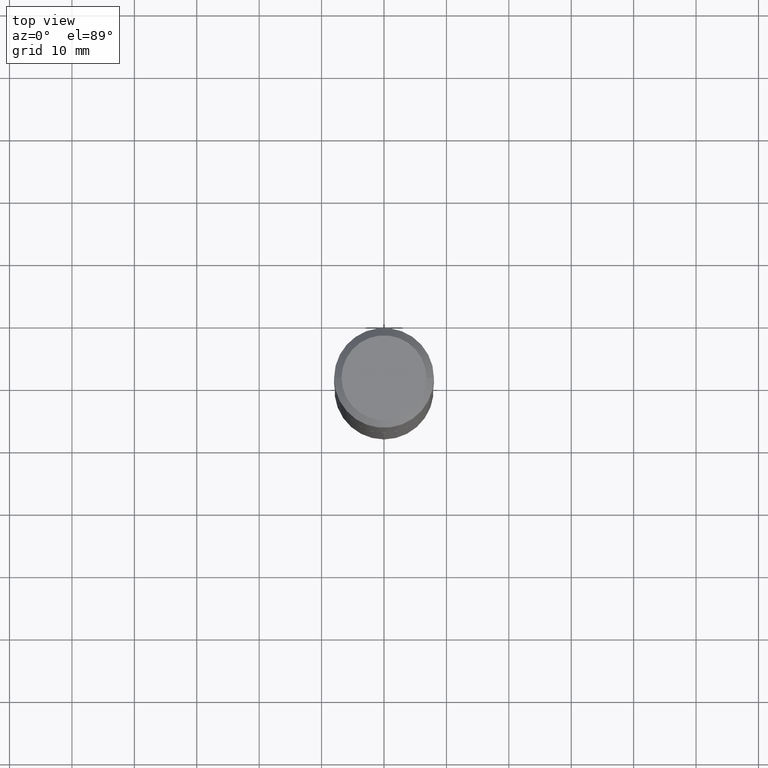
[diagram: clean part render]
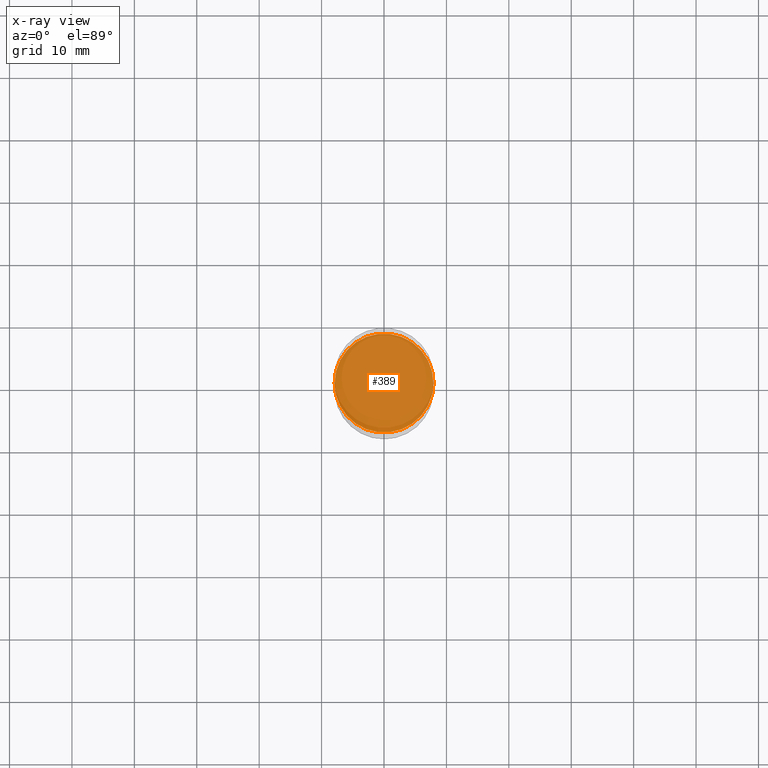
[diagram: x-ray — body ghosted, one internal face saturated and labeled with its STEP entity id]
A machine part, top view, then the same camera in x-ray: the body is ghosted and one INTERNAL B-rep face — a face not visible from any outside direction — is saturated and labeled: STEP entity #389.
In plain terms, the highlighted planar face has unit normal (-0, 0, 1).
Its self-contained STEP definition (entity closure, byte-faithful):
#3 = AXIS2_PLACEMENT_3D ( 'NONE', #123, #337, #330 ) ;
#5 = DIRECTION ( 'NONE',  ( -2.445468806185136597E-29, 3.491481338843145583E-15, 1.000000000000000000 ) ) ;
#26 = DIRECTION ( 'NONE',  ( 1.000000000000000000, -6.982962677686264344E-15, 0.000000000000000000 ) ) ;
#43 = PLANE ( 'NONE',  #3 ) ;
#78 = FACE_OUTER_BOUND ( 'NONE', #189, .T. ) ;
#87 = DIRECTION ( 'NONE',  ( -2.445468806185136597E-29, 3.491481338843145583E-15, 1.000000000000000000 ) ) ;
#91 = CARTESIAN_POINT ( 'NONE',  ( 0.3120000000000001106, -9.051665370950845469E-15, -1.968499999999999472 ) ) ;
#93 = ORIENTED_EDGE ( 'NONE', *, *, #265, .F. ) ;
#123 = CARTESIAN_POINT ( 'NONE',  ( 4.813905344975440153E-29, -6.872981015512730130E-15, -1.968499999999999472 ) ) ;
#166 = ORIENTED_EDGE ( 'NONE', *, *, #322, .F. ) ;
#175 = AXIS2_PLACEMENT_3D ( 'NONE', #424, #5, #249 ) ;
#189 = EDGE_LOOP ( 'NONE', ( #166, #93 ) ) ;
#228 = AXIS2_PLACEMENT_3D ( 'NONE', #260, #87, #26 ) ;
#249 = DIRECTION ( 'NONE',  ( 1.000000000000000000, -6.982962677686264344E-15, 0.000000000000000000 ) ) ;
#259 = CARTESIAN_POINT ( 'NONE',  ( -0.3120000000000001106, -4.653438452767105957E-15, -1.968499999999999472 ) ) ;
#260 = CARTESIAN_POINT ( 'NONE',  ( 4.813905344975440153E-29, -6.872981015512730130E-15, -1.968499999999999472 ) ) ;
#265 = EDGE_CURVE ( 'NONE', #408, #314, #453, .T. ) ;
#314 = VERTEX_POINT ( 'NONE', #91 ) ;
#322 = EDGE_CURVE ( 'NONE', #314, #408, #438, .T. ) ;
#330 = DIRECTION ( 'NONE',  ( 1.000000000000000000, -6.982962677686265922E-15, 4.876176775795935793E-29 ) ) ;
#337 = DIRECTION ( 'NONE',  ( -2.438088387897960049E-29, 3.491481338843145188E-15, 1.000000000000000000 ) ) ;
#389 = ADVANCED_FACE ( 'NONE', ( #78 ), #43, .F. ) ;
#408 = VERTEX_POINT ( 'NONE', #259 ) ;
#424 = CARTESIAN_POINT ( 'NONE',  ( 4.813905344975440153E-29, -6.872981015512730130E-15, -1.968499999999999472 ) ) ;
#438 = CIRCLE ( 'NONE', #228, 0.3120000000000001106 ) ;
#453 = CIRCLE ( 'NONE', #175, 0.3120000000000001106 ) ;